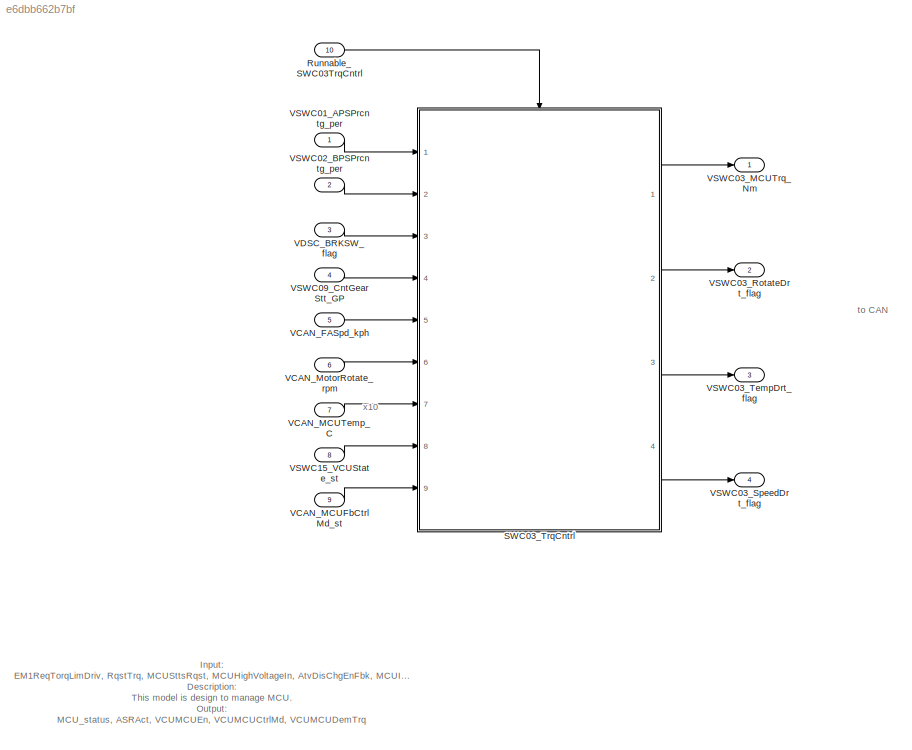
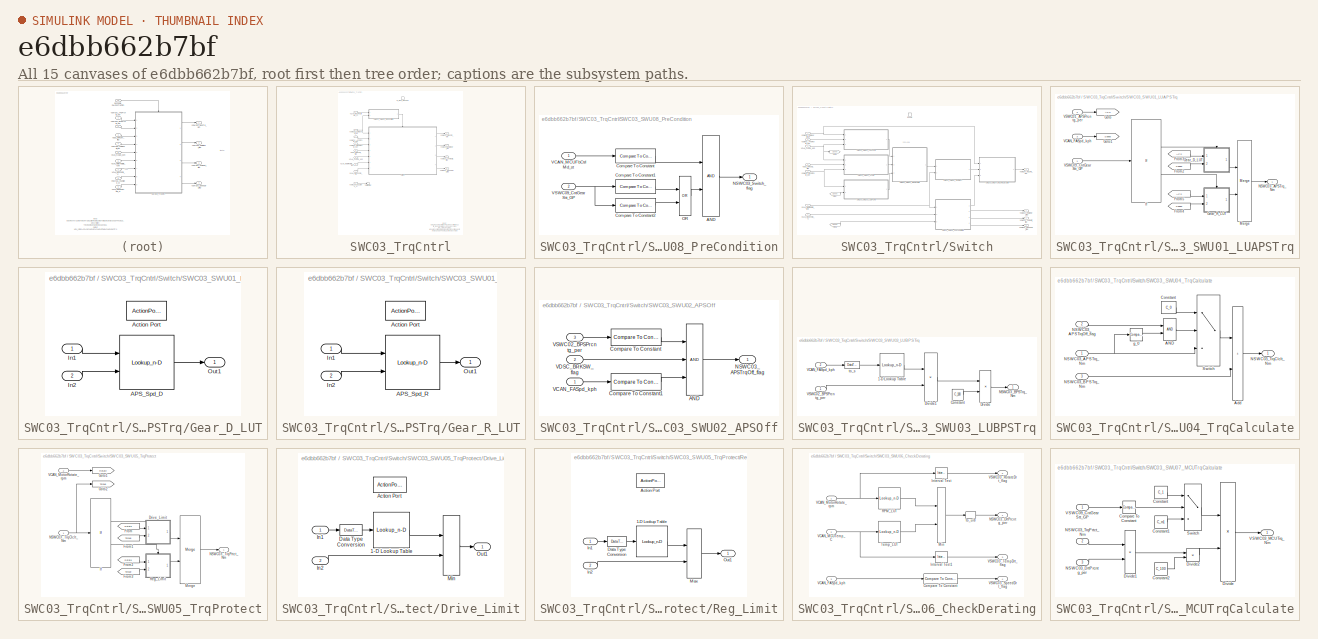
[diagram: thumbnail index - all 15 canvases of the model, root first then tree order]
MODEL slx_e6dbb662b7bf
KIND model
CONFIG AbsTol = auto
CONFIG EnableMultiTasking = off
CONFIG FixedStep = 0.01
CONFIG MaxStep = auto
CONFIG MinStep = auto
CONFIG RelTol = 1e-3
CONFIG SampleTimeConstraint = Unconstrained
CONFIG SolverName = FixedStepDiscrete
CONFIG StartTime = 0.0
CONFIG StopTime = 10.0
WORKSPACE source: mxarray member
WORKSPACE MSWC01_DrvLmt_Nm: Simulink.Parameter (value not decoded)
WORKSPACE MSWC01_FindBrk_Nm: Simulink.Parameter (value not decoded)
WORKSPACE MSWC01_FindTrq_Nm: Simulink.Parameter (value not decoded)
WORKSPACE MSWC01_RegLmt_Nm: Simulink.Parameter (value not decoded)
WORKSPACE NSWC05_ZeroTrq = 0
BLOCK [Inport] Runnable_SWC03TrqCntrl
  OutputFunctionCall = on
  Port = 10
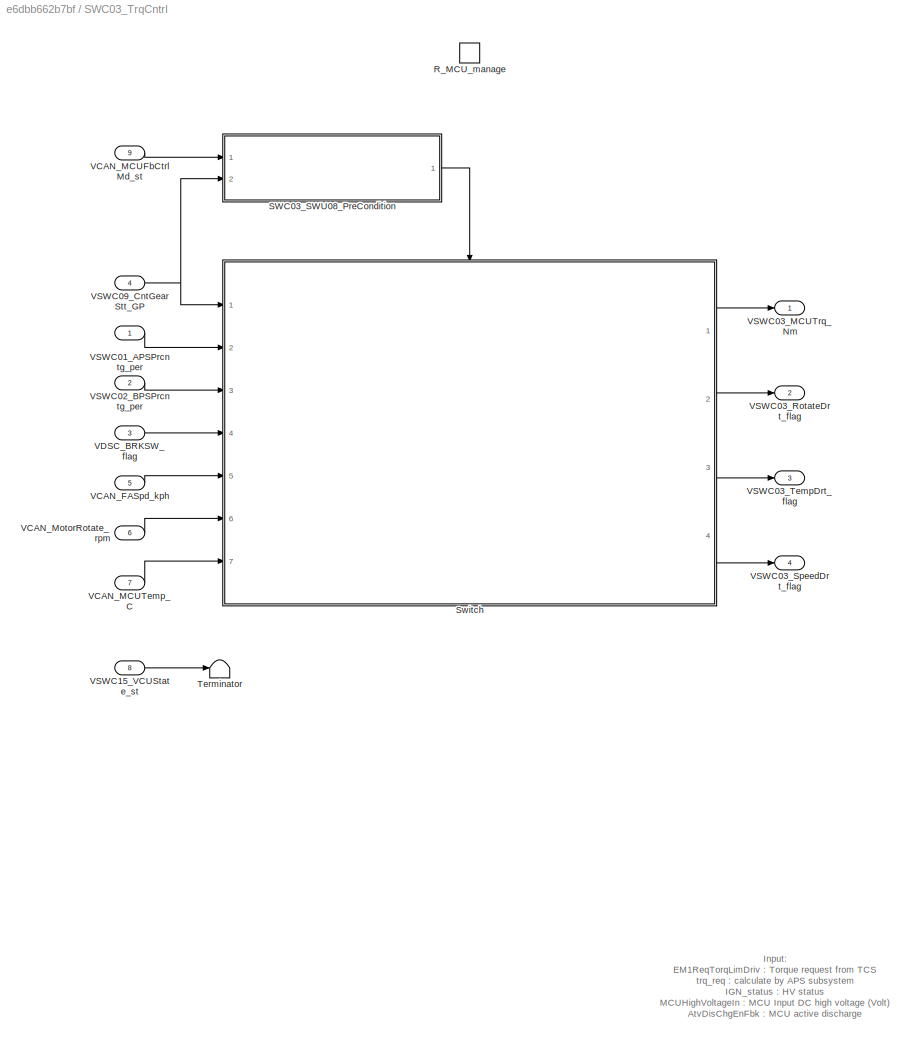
BLOCK [SubSystem] SWC03_TrqCntrl
  Ports = [9, 4, 0, 1]
  RequestExecContextInheritance = off
BLOCK [TriggerPort] SWC03_TrqCntrl/R_MCU_manage
  Ports = []
  StatesWhenEnabling = held
  TriggerType = function-call
  VariantControl = (inherit)
BLOCK [SubSystem] SWC03_TrqCntrl/SWC03_SWU08_PreCondition
  Ports = [2, 1]
  RTWFcnName = SWC03_SWU08_PreCondition
  RTWFcnNameOpts = User specified
  RTWSystemCode = Reusable function
  RequestExecContextInheritance = off
  TreatAsAtomicUnit = on
BLOCK [Logic] SWC03_TrqCntrl/SWC03_SWU08_PreCondition/AND
  AllPortsSameDT = off
  OutDataTypeStr = boolean
  Ports = [2, 1]
BLOCK [Reference] SWC03_TrqCntrl/SWC03_SWU08_PreCondition/Compare To Constant  REF=simulink/Logic and Bit
Operations/Compare
To Constant
  Ports = [1, 1]
  SourceBlock = simulink/Logic and Bit\nOperations/Compare\nTo Constant
  SourceProductBaseCode = SL
  SourceType = Compare To Constant
BLOCK [Reference] SWC03_TrqCntrl/SWC03_SWU08_PreCondition/Compare To Constant1  REF=simulink/Logic and Bit
Operations/Compare
To Constant
  Ports = [1, 1]
  SourceBlock = simulink/Logic and Bit\nOperations/Compare\nTo Constant
  SourceProductBaseCode = SL
  SourceType = Compare To Constant
BLOCK [Reference] SWC03_TrqCntrl/SWC03_SWU08_PreCondition/Compare To Constant2  REF=simulink/Logic and Bit
Operations/Compare
To Constant
  Ports = [1, 1]
  SourceBlock = simulink/Logic and Bit\nOperations/Compare\nTo Constant
  SourceProductBaseCode = SL
  SourceType = Compare To Constant
BLOCK [Outport] SWC03_TrqCntrl/SWC03_SWU08_PreCondition/NSWC03_Switch_flag
BLOCK [Logic] SWC03_TrqCntrl/SWC03_SWU08_PreCondition/OR
  AllPortsSameDT = off
  Operator = OR
  OutDataTypeStr = boolean
  Ports = [2, 1]
BLOCK [Inport] SWC03_TrqCntrl/SWC03_SWU08_PreCondition/VCAN_MCUFbCtrlMd_st
BLOCK [Inport] SWC03_TrqCntrl/SWC03_SWU08_PreCondition/VSWC09_CntGearStt_GP
  Port = 2
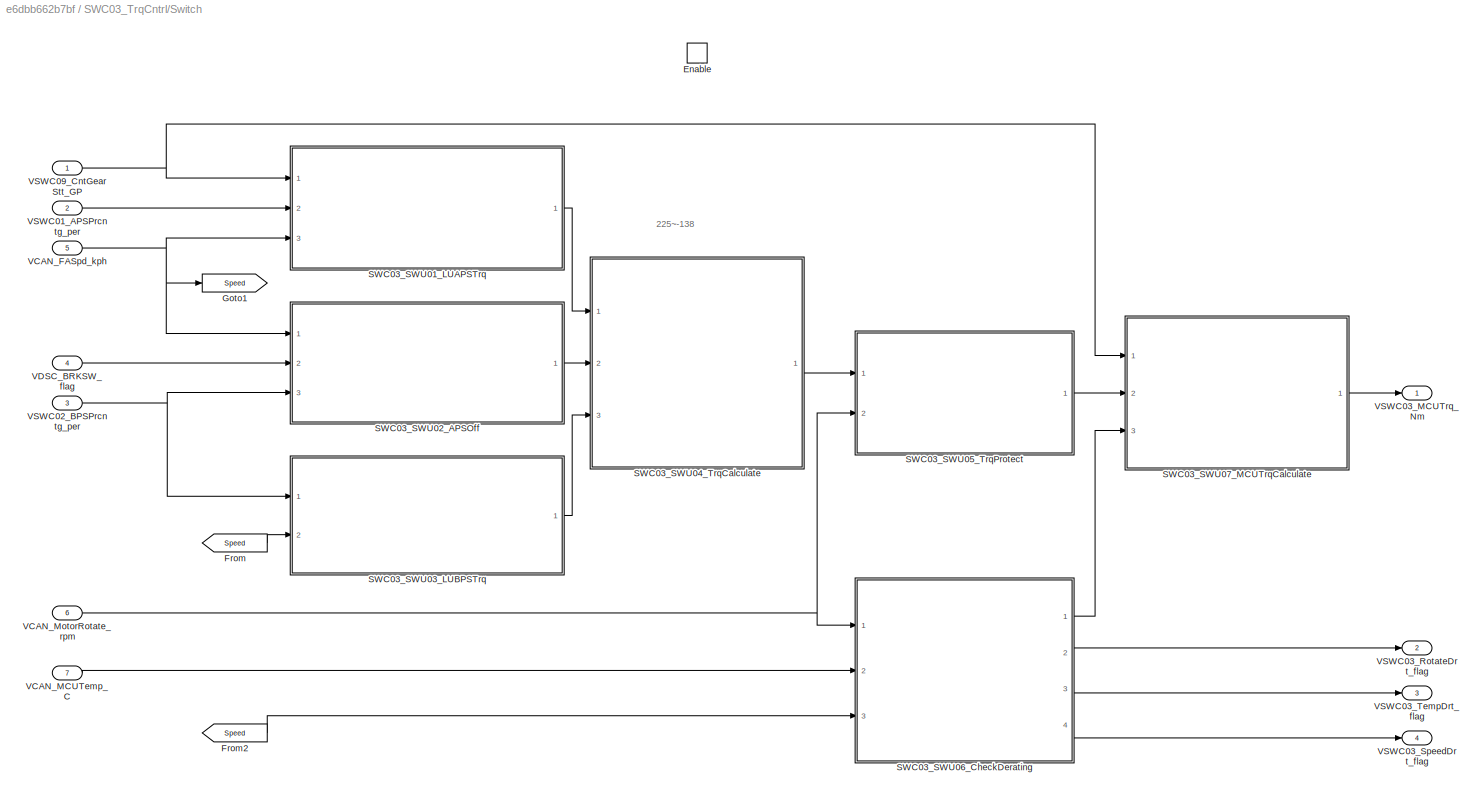
BLOCK [SubSystem] SWC03_TrqCntrl/Switch
  Ports = [7, 4, 1]
  RequestExecContextInheritance = off
BLOCK [EnablePort] SWC03_TrqCntrl/Switch/Enable
  Ports = []
  StatesWhenEnabling = reset
BLOCK [From] SWC03_TrqCntrl/Switch/From
  GotoTag = Speed
BLOCK [From] SWC03_TrqCntrl/Switch/From2
  GotoTag = Speed
BLOCK [Goto] SWC03_TrqCntrl/Switch/Goto1
  GotoTag = Speed
BLOCK [SubSystem] SWC03_TrqCntrl/Switch/SWC03_SWU01_LUAPSTrq
  Ports = [3, 1]
  RTWFcnName = SWC03_SWU01_LUAPSTrq
  RTWFcnNameOpts = User specified
  RTWSystemCode = Reusable function
  RequestExecContextInheritance = off
  TreatAsAtomicUnit = on
BLOCK [From] SWC03_TrqCntrl/Switch/SWC03_SWU01_LUAPSTrq/From2
  GotoTag = Speed
BLOCK [From] SWC03_TrqCntrl/Switch/SWC03_SWU01_LUAPSTrq/From3
  GotoTag = APS
BLOCK [From] SWC03_TrqCntrl/Switch/SWC03_SWU01_LUAPSTrq/From4
  GotoTag = Speed
BLOCK [From] SWC03_TrqCntrl/Switch/SWC03_SWU01_LUAPSTrq/From5
  GotoTag = APS
BLOCK [SubSystem] SWC03_TrqCntrl/Switch/SWC03_SWU01_LUAPSTrq/Gear_D_LUT
  Ports = [2, 1, 0, 0, 0, 0, 0, 1]
  RequestExecContextInheritance = off
  TreatAsAtomicUnit = on
BLOCK [Lookup_n-D] SWC03_TrqCntrl/Switch/SWC03_SWU01_LUAPSTrq/Gear_D_LUT/APS_Spd_D
  AttributesFormatString = UseLastTableValue=%<UseLastTableValue>
  BreakpointsForDimension1 = [0:10:100]
  BreakpointsForDimension1DataTypeStr = single
  BreakpointsForDimension2 = [0:10:150]
  BreakpointsForDimension2DataTypeStr = single
  ExtrapMethod = Clip
  InputPortMap = u0,u1
  IntermediateResultsDataTypeStr = single
  InternalRulePriority = Speed
  OutDataTypeStr = single
  Ports = [2, 1]
  Table = MSWC01_FindTrq_Nm
  TableDataTypeStr = single
  UseLastTableValue = on
BLOCK [ActionPort] SWC03_TrqCntrl/Switch/SWC03_SWU01_LUAPSTrq/Gear_D_LUT/Action Port
  ActionPortLabel = if(u1 == 4)
BLOCK [Inport] SWC03_TrqCntrl/Switch/SWC03_SWU01_LUAPSTrq/Gear_D_LUT/In1
BLOCK [Inport] SWC03_TrqCntrl/Switch/SWC03_SWU01_LUAPSTrq/Gear_D_LUT/In2
  Port = 2
BLOCK [Outport] SWC03_TrqCntrl/Switch/SWC03_SWU01_LUAPSTrq/Gear_D_LUT/Out1
BLOCK [SubSystem] SWC03_TrqCntrl/Switch/SWC03_SWU01_LUAPSTrq/Gear_R_LUT
  Ports = [2, 1, 0, 0, 0, 0, 0, 1]
  RequestExecContextInheritance = off
  TreatAsAtomicUnit = on
BLOCK [Lookup_n-D] SWC03_TrqCntrl/Switch/SWC03_SWU01_LUAPSTrq/Gear_R_LUT/APS_Spd_R
  AttributesFormatString = UseLastTableValue=%<UseLastTableValue>
  BreakpointsForDimension1 = [0:10:100]
  BreakpointsForDimension1DataTypeStr = single
  BreakpointsForDimension2 = [0:10:150]
  BreakpointsForDimension2DataTypeStr = single
  ExtrapMethod = Clip
  InputPortMap = u0,u1
  IntermediateResultsDataTypeStr = single
  InternalRulePriority = Speed
  OutDataTypeStr = single
  Ports = [2, 1]
  Table = MSWC01_FindTrq_Nm
  TableDataTypeStr = single
  UseLastTableValue = on
BLOCK [ActionPort] SWC03_TrqCntrl/Switch/SWC03_SWU01_LUAPSTrq/Gear_R_LUT/Action Port
  ActionPortLabel = elseif(u1 == 2)
BLOCK [Inport] SWC03_TrqCntrl/Switch/SWC03_SWU01_LUAPSTrq/Gear_R_LUT/In1
BLOCK [Inport] SWC03_TrqCntrl/Switch/SWC03_SWU01_LUAPSTrq/Gear_R_LUT/In2
  Port = 2
BLOCK [Outport] SWC03_TrqCntrl/Switch/SWC03_SWU01_LUAPSTrq/Gear_R_LUT/Out1
BLOCK [Goto] SWC03_TrqCntrl/Switch/SWC03_SWU01_LUAPSTrq/Goto
  GotoTag = APS
BLOCK [Goto] SWC03_TrqCntrl/Switch/SWC03_SWU01_LUAPSTrq/Goto1
  GotoTag = Speed
BLOCK [If] SWC03_TrqCntrl/Switch/SWC03_SWU01_LUAPSTrq/If
  ElseIfExpressions = u1 == 2
  IfExpression = u1 == 4
  Ports = [1, 2]
  ShowElse = off
BLOCK [Merge] SWC03_TrqCntrl/Switch/SWC03_SWU01_LUAPSTrq/Merge
  Ports = [2, 1]
BLOCK [Outport] SWC03_TrqCntrl/Switch/SWC03_SWU01_LUAPSTrq/NSWC03_APSTrq_Nm
BLOCK [Inport] SWC03_TrqCntrl/Switch/SWC03_SWU01_LUAPSTrq/VCAN_FASpd_kph
  Port = 3
BLOCK [Inport] SWC03_TrqCntrl/Switch/SWC03_SWU01_LUAPSTrq/VSWC01_APSPrcntg_per
  Port = 2
BLOCK [Inport] SWC03_TrqCntrl/Switch/SWC03_SWU01_LUAPSTrq/VSWC09_CntGearStt_GP
BLOCK [SubSystem] SWC03_TrqCntrl/Switch/SWC03_SWU02_APSOff
  Ports = [3, 1]
  RTWFcnName = SWC03_SWU02_APSOff
  RTWFcnNameOpts = User specified
  RTWSystemCode = Reusable function
  RequestExecContextInheritance = off
  TreatAsAtomicUnit = on
BLOCK [Logic] SWC03_TrqCntrl/Switch/SWC03_SWU02_APSOff/AND
  AllPortsSameDT = off
  Inputs = 3
  OutDataTypeStr = boolean
  Ports = [3, 1]
BLOCK [Reference] SWC03_TrqCntrl/Switch/SWC03_SWU02_APSOff/Compare To Constant  REF=simulink/Logic and Bit
Operations/Compare
To Constant
  Ports = [1, 1]
  SourceBlock = simulink/Logic and Bit\nOperations/Compare\nTo Constant
  SourceProductBaseCode = SL
  SourceType = Compare To Constant
BLOCK [Reference] SWC03_TrqCntrl/Switch/SWC03_SWU02_APSOff/Compare To Constant1  REF=simulink/Logic and Bit
Operations/Compare
To Constant
  Ports = [1, 1]
  SourceBlock = simulink/Logic and Bit\nOperations/Compare\nTo Constant
  SourceProductBaseCode = SL
  SourceType = Compare To Constant
BLOCK [Outport] SWC03_TrqCntrl/Switch/SWC03_SWU02_APSOff/NSWC03_APSTrqOff_flag
BLOCK [Inport] SWC03_TrqCntrl/Switch/SWC03_SWU02_APSOff/VCAN_FASpd_kph
BLOCK [Inport] SWC03_TrqCntrl/Switch/SWC03_SWU02_APSOff/VDSC_BRKSW_flag
  Port = 2
BLOCK [Inport] SWC03_TrqCntrl/Switch/SWC03_SWU02_APSOff/VSWC02_BPSPrcntg_per
  Port = 3
BLOCK [SubSystem] SWC03_TrqCntrl/Switch/SWC03_SWU03_LUBPSTrq
  Ports = [2, 1]
  RTWFcnName = SWC03_SWU03_LUBPSTrq
  RTWFcnNameOpts = User specified
  RTWSystemCode = Reusable function
  RequestExecContextInheritance = off
  TreatAsAtomicUnit = on
BLOCK [Lookup_n-D] SWC03_TrqCntrl/Switch/SWC03_SWU03_LUBPSTrq/1-D Lookup Table
  BreakpointsForDimension1 = [0:10:150]
  BreakpointsForDimension1DataTypeStr = single
  FractionDataTypeStr = single
  InputPortMap = u0
  IntermediateResultsDataTypeStr = single
  InternalRulePriority = Speed
  NumberOfTableDimensions = 1
  OutDataTypeStr = single
  Ports = [1, 1]
  RndMeth = Simplest
  Table = MSWC01_FindBrk_Nm
  TableDataTypeStr = single
BLOCK [Constant] SWC03_TrqCntrl/Switch/SWC03_SWU03_LUBPSTrq/Constant
  OutDataTypeStr = single
  SampleTime = -1
  Value = C_100
BLOCK [Product] SWC03_TrqCntrl/Switch/SWC03_SWU03_LUBPSTrq/Divide
  Inputs = */
  Ports = [2, 1]
BLOCK [Product] SWC03_TrqCntrl/Switch/SWC03_SWU03_LUBPSTrq/Divide1
  Inputs = **
  Ports = [2, 1]
BLOCK [Outport] SWC03_TrqCntrl/Switch/SWC03_SWU03_LUBPSTrq/NSWC03_BPSTrq_Nm
BLOCK [Inport] SWC03_TrqCntrl/Switch/SWC03_SWU03_LUBPSTrq/VCAN_FASpd_kph
  Port = 2
BLOCK [Inport] SWC03_TrqCntrl/Switch/SWC03_SWU03_LUBPSTrq/VSWC02_BPSPrcntg_per
BLOCK [DataTypeConversion] SWC03_TrqCntrl/Switch/SWC03_SWU03_LUBPSTrq/to_s
  OutDataTypeStr = single
  RndMeth = Floor
  SaturateOnIntegerOverflow = off
BLOCK [SubSystem] SWC03_TrqCntrl/Switch/SWC03_SWU04_TrqCalculate
  Ports = [3, 1]
  RTWFcnName = SWC03_SWU04_TrqCalculate
  RTWFcnNameOpts = User specified
  RTWSystemCode = Reusable function
  RequestExecContextInheritance = off
  TreatAsAtomicUnit = on
BLOCK [Logic] SWC03_TrqCntrl/Switch/SWC03_SWU04_TrqCalculate/AND
  AllPortsSameDT = off
  OutDataTypeStr = boolean
  Ports = [2, 1]
BLOCK [Sum] SWC03_TrqCntrl/Switch/SWC03_SWU04_TrqCalculate/Add
  IconShape = rectangular
  Ports = [2, 1]
BLOCK [Constant] SWC03_TrqCntrl/Switch/SWC03_SWU04_TrqCalculate/Constant
  OutDataTypeStr = single
  SampleTime = -1
  Value = C_0
BLOCK [Inport] SWC03_TrqCntrl/Switch/SWC03_SWU04_TrqCalculate/NSWC03_APSTrqOff_flag
  Port = 2
BLOCK [Inport] SWC03_TrqCntrl/Switch/SWC03_SWU04_TrqCalculate/NSWC03_APSTrq_Nm
BLOCK [Inport] SWC03_TrqCntrl/Switch/SWC03_SWU04_TrqCalculate/NSWC03_BPSTrq_Nm
  Port = 3
BLOCK [Outport] SWC03_TrqCntrl/Switch/SWC03_SWU04_TrqCalculate/NSWC03_TrqClclt_Nm
BLOCK [Switch] SWC03_TrqCntrl/Switch/SWC03_SWU04_TrqCalculate/Switch
  Criteria = u2 ~= 0
  InputSameDT = off
  SaturateOnIntegerOverflow = off
BLOCK [Reference] SWC03_TrqCntrl/Switch/SWC03_SWU04_TrqCalculate/g_0  REF=simulink/Logic and Bit
Operations/Compare
To Constant
  Ports = [1, 1]
  SourceBlock = simulink/Logic and Bit\nOperations/Compare\nTo Constant
  SourceProductBaseCode = SL
  SourceType = Compare To Constant
BLOCK [SubSystem] SWC03_TrqCntrl/Switch/SWC03_SWU05_TrqProtect
  Ports = [2, 1]
  RTWFcnName = SWC03_SWU06_TrqProtect
  RTWFcnNameOpts = User specified
  RTWSystemCode = Reusable function
  RequestExecContextInheritance = off
  TreatAsAtomicUnit = on
BLOCK [SubSystem] SWC03_TrqCntrl/Switch/SWC03_SWU05_TrqProtect/Drive_Limit
  Ports = [2, 1, 0, 0, 0, 0, 0, 1]
  RequestExecContextInheritance = off
  TreatAsAtomicUnit = on
BLOCK [Lookup_n-D] SWC03_TrqCntrl/Switch/SWC03_SWU05_TrqProtect/Drive_Limit/1-D Lookup Table
  BreakpointsForDimension1 = [0:1000:16000]
  BreakpointsForDimension1DataTypeStr = single
  FractionDataTypeStr = single
  InputPortMap = u0
  IntermediateResultsDataTypeStr = single
  InternalRulePriority = Speed
  NumberOfTableDimensions = 1
  OutDataTypeStr = single
  Ports = [1, 1]
  RndMeth = Simplest
  Table = MSWC01_DrvLmt_Nm
  TableDataTypeStr = single
BLOCK [ActionPort] SWC03_TrqCntrl/Switch/SWC03_SWU05_TrqProtect/Drive_Limit/Action Port
  ActionPortLabel = if(u1 > 0)
BLOCK [DataTypeConversion] SWC03_TrqCntrl/Switch/SWC03_SWU05_TrqProtect/Drive_Limit/Data Type Conversion
  OutDataTypeStr = single
  RndMeth = Floor
  SaturateOnIntegerOverflow = off
BLOCK [Inport] SWC03_TrqCntrl/Switch/SWC03_SWU05_TrqProtect/Drive_Limit/In1
BLOCK [Inport] SWC03_TrqCntrl/Switch/SWC03_SWU05_TrqProtect/Drive_Limit/In2
  Port = 2
BLOCK [MinMax] SWC03_TrqCntrl/Switch/SWC03_SWU05_TrqProtect/Drive_Limit/Min
  Inputs = 2
  Ports = [2, 1]
BLOCK [Outport] SWC03_TrqCntrl/Switch/SWC03_SWU05_TrqProtect/Drive_Limit/Out1
BLOCK [From] SWC03_TrqCntrl/Switch/SWC03_SWU05_TrqProtect/From
  GotoTag = Rotate
BLOCK [From] SWC03_TrqCntrl/Switch/SWC03_SWU05_TrqProtect/From1
  GotoTag = Torque
BLOCK [From] SWC03_TrqCntrl/Switch/SWC03_SWU05_TrqProtect/From2
  GotoTag = Rotate
BLOCK [From] SWC03_TrqCntrl/Switch/SWC03_SWU05_TrqProtect/From3
  GotoTag = Torque
BLOCK [Goto] SWC03_TrqCntrl/Switch/SWC03_SWU05_TrqProtect/Goto1
  GotoTag = Rotate
BLOCK [Goto] SWC03_TrqCntrl/Switch/SWC03_SWU05_TrqProtect/Goto2
  GotoTag = Torque
BLOCK [If] SWC03_TrqCntrl/Switch/SWC03_SWU05_TrqProtect/If
  Ports = [1, 2]
BLOCK [Merge] SWC03_TrqCntrl/Switch/SWC03_SWU05_TrqProtect/Merge
  Ports = [2, 1]
BLOCK [Inport] SWC03_TrqCntrl/Switch/SWC03_SWU05_TrqProtect/NSWC03_TrqClclt_Nm
BLOCK [Outport] SWC03_TrqCntrl/Switch/SWC03_SWU05_TrqProtect/NSWC03_TrqPrtct_Nm
BLOCK [SubSystem] SWC03_TrqCntrl/Switch/SWC03_SWU05_TrqProtect/Reg_Limit
  Ports = [2, 1, 0, 0, 0, 0, 0, 1]
  RequestExecContextInheritance = off
  TreatAsAtomicUnit = on
BLOCK [Lookup_n-D] SWC03_TrqCntrl/Switch/SWC03_SWU05_TrqProtect/Reg_Limit/1-D Lookup Table
  BreakpointsForDimension1 = [0:1000:16000]
  BreakpointsForDimension1DataTypeStr = single
  FractionDataTypeStr = single
  InputPortMap = u0
  IntermediateResultsDataTypeStr = single
  InternalRulePriority = Speed
  NumberOfTableDimensions = 1
  OutDataTypeStr = single
  Ports = [1, 1]
  RndMeth = Simplest
  Table = MSWC01_RegLmt_Nm
  TableDataTypeStr = single
BLOCK [ActionPort] SWC03_TrqCntrl/Switch/SWC03_SWU05_TrqProtect/Reg_Limit/Action Port
  ActionPortLabel = else
BLOCK [DataTypeConversion] SWC03_TrqCntrl/Switch/SWC03_SWU05_TrqProtect/Reg_Limit/Data Type Conversion
  OutDataTypeStr = single
  RndMeth = Floor
  SaturateOnIntegerOverflow = off
BLOCK [Inport] SWC03_TrqCntrl/Switch/SWC03_SWU05_TrqProtect/Reg_Limit/In1
BLOCK [Inport] SWC03_TrqCntrl/Switch/SWC03_SWU05_TrqProtect/Reg_Limit/In2
  Port = 2
BLOCK [MinMax] SWC03_TrqCntrl/Switch/SWC03_SWU05_TrqProtect/Reg_Limit/Max
  Function = max
  Inputs = 2
  Ports = [2, 1]
BLOCK [Outport] SWC03_TrqCntrl/Switch/SWC03_SWU05_TrqProtect/Reg_Limit/Out1
BLOCK [Inport] SWC03_TrqCntrl/Switch/SWC03_SWU05_TrqProtect/VCAN_MotorRotate_rpm
  Port = 2
BLOCK [SubSystem] SWC03_TrqCntrl/Switch/SWC03_SWU06_CheckDerating
  Ports = [3, 4]
  RTWFcnName = SWC03_SWU05_CheckDerating
  RTWFcnNameOpts = User specified
  RTWSystemCode = Reusable function
  RequestExecContextInheritance = off
  TreatAsAtomicUnit = on
BLOCK [Reference] SWC03_TrqCntrl/Switch/SWC03_SWU06_CheckDerating/Compare To Constant  REF=simulink/Logic and Bit
Operations/Compare
To Constant
  Ports = [1, 1]
  SourceBlock = simulink/Logic and Bit\nOperations/Compare\nTo Constant
  SourceProductBaseCode = SL
  SourceType = Compare To Constant
BLOCK [Reference] SWC03_TrqCntrl/Switch/SWC03_SWU06_CheckDerating/Interval Test  REF=simulink/Logic and Bit
Operations/Interval Test
  AttributesFormatString = %<uplimit>~%<lowlimit>
  Ports = [1, 1]
  SourceBlock = simulink/Logic and Bit\nOperations/Interval Test
  SourceProductBaseCode = SL
  SourceType = Interval Test
BLOCK [Reference] SWC03_TrqCntrl/Switch/SWC03_SWU06_CheckDerating/Interval Test1  REF=simulink/Logic and Bit
Operations/Interval Test
  AttributesFormatString = %<uplimit>~%<lowlimit>
  Ports = [1, 1]
  SourceBlock = simulink/Logic and Bit\nOperations/Interval Test
  SourceProductBaseCode = SL
  SourceType = Interval Test
BLOCK [MinMax] SWC03_TrqCntrl/Switch/SWC03_SWU06_CheckDerating/Min
  Inputs = 2
  Ports = [2, 1]
BLOCK [Outport] SWC03_TrqCntrl/Switch/SWC03_SWU06_CheckDerating/NSWC03_DrtPrcntg_per
BLOCK [Lookup_n-D] SWC03_TrqCntrl/Switch/SWC03_SWU06_CheckDerating/RPM_LUT
  BreakpointsForDimension1 = [15000:10:16000]
  BreakpointsForDimension1DataTypeStr = uint16
  ExtrapMethod = Clip
  FractionDataTypeStr = single
  InputPortMap = u0
  IntermediateResultsDataTypeStr = single
  InternalRulePriority = Speed
  InterpMethod = Flat
  NumberOfTableDimensions = 1
  OutDataTypeStr = uint16
  Ports = [1, 1]
  RndMeth = Simplest
  Table = 100 - [0:100]
  TableDataTypeStr = uint16
  UseLastTableValue = on
BLOCK [Lookup_n-D] SWC03_TrqCntrl/Switch/SWC03_SWU06_CheckDerating/Temp_LUT
  BreakpointsForDimension1 = [1250:1350]
  BreakpointsForDimension1DataTypeStr = uint16
  ExtrapMethod = Clip
  FractionDataTypeStr = single
  InputPortMap = u0
  IntermediateResultsDataTypeStr = single
  InternalRulePriority = Speed
  InterpMethod = Flat
  NumberOfTableDimensions = 1
  OutDataTypeStr = uint16
  Ports = [1, 1]
  RndMeth = Simplest
  Table = 100 - [0:100]
  TableDataTypeStr = uint16
  UseLastTableValue = on
BLOCK [Inport] SWC03_TrqCntrl/Switch/SWC03_SWU06_CheckDerating/VCAN_FASpd_kph
  Port = 3
BLOCK [Inport] SWC03_TrqCntrl/Switch/SWC03_SWU06_CheckDerating/VCAN_MCUTemp_C
  Port = 2
BLOCK [Inport] SWC03_TrqCntrl/Switch/SWC03_SWU06_CheckDerating/VCAN_MotorRotate_rpm
BLOCK [Outport] SWC03_TrqCntrl/Switch/SWC03_SWU06_CheckDerating/VSWC03_RotateDrt_flag
  Port = 2
BLOCK [Outport] SWC03_TrqCntrl/Switch/SWC03_SWU06_CheckDerating/VSWC03_SpeedDrt_flag
  Port = 4
BLOCK [Outport] SWC03_TrqCntrl/Switch/SWC03_SWU06_CheckDerating/VSWC03_TempDrt_flag
  Port = 3
BLOCK [DataTypeConversion] SWC03_TrqCntrl/Switch/SWC03_SWU06_CheckDerating/to_ui8
  OutDataTypeStr = uint8
  RndMeth = Floor
  SaturateOnIntegerOverflow = off
BLOCK [SubSystem] SWC03_TrqCntrl/Switch/SWC03_SWU07_MCUTrqCalculate
  Ports = [3, 1]
  RTWFcnName = SWC03_SWU07_MCUTrqCalculate
  RTWFcnNameOpts = User specified
  RTWSystemCode = Reusable function
  RequestExecContextInheritance = off
  TreatAsAtomicUnit = on
BLOCK [Reference] SWC03_TrqCntrl/Switch/SWC03_SWU07_MCUTrqCalculate/Compare To Constant  REF=simulink/Logic and Bit
Operations/Compare
To Constant
  Ports = [1, 1]
  SourceBlock = simulink/Logic and Bit\nOperations/Compare\nTo Constant
  SourceProductBaseCode = SL
  SourceType = Compare To Constant
BLOCK [Constant] SWC03_TrqCntrl/Switch/SWC03_SWU07_MCUTrqCalculate/Constant
  OutDataTypeStr = int8
  SampleTime = -1
  Value = C_1
BLOCK [Constant] SWC03_TrqCntrl/Switch/SWC03_SWU07_MCUTrqCalculate/Constant1
  OutDataTypeStr = int8
  SampleTime = -1
  Value = C_m1
BLOCK [Constant] SWC03_TrqCntrl/Switch/SWC03_SWU07_MCUTrqCalculate/Constant2
  OutDataTypeStr = uint8
  Value = C_100
BLOCK [Product] SWC03_TrqCntrl/Switch/SWC03_SWU07_MCUTrqCalculate/Divide
  Inputs = **
  Ports = [2, 1]
BLOCK [Product] SWC03_TrqCntrl/Switch/SWC03_SWU07_MCUTrqCalculate/Divide1
  Inputs = **
  Ports = [2, 1]
BLOCK [Product] SWC03_TrqCntrl/Switch/SWC03_SWU07_MCUTrqCalculate/Divide2
  Inputs = */
  Ports = [2, 1]
BLOCK [Inport] SWC03_TrqCntrl/Switch/SWC03_SWU07_MCUTrqCalculate/NSWC03_DrtPrcntg_per
  Port = 3
BLOCK [Inport] SWC03_TrqCntrl/Switch/SWC03_SWU07_MCUTrqCalculate/NSWC03_TrqPrtct_Nm
  Port = 2
BLOCK [Switch] SWC03_TrqCntrl/Switch/SWC03_SWU07_MCUTrqCalculate/Switch
  Criteria = u2 > Threshold
  InputSameDT = off
  SaturateOnIntegerOverflow = off
BLOCK [Outport] SWC03_TrqCntrl/Switch/SWC03_SWU07_MCUTrqCalculate/VSWC03_MCUTrq_Nm
BLOCK [Inport] SWC03_TrqCntrl/Switch/SWC03_SWU07_MCUTrqCalculate/VSWC09_CntGearStt_GP
BLOCK [Inport] SWC03_TrqCntrl/Switch/VCAN_FASpd_kph
  Port = 5
BLOCK [Inport] SWC03_TrqCntrl/Switch/VCAN_MCUTemp_C
  Port = 7
BLOCK [Inport] SWC03_TrqCntrl/Switch/VCAN_MotorRotate_rpm
  Port = 6
BLOCK [Inport] SWC03_TrqCntrl/Switch/VDSC_BRKSW_flag
  Port = 4
BLOCK [Inport] SWC03_TrqCntrl/Switch/VSWC01_APSPrcntg_per
  Port = 2
BLOCK [Inport] SWC03_TrqCntrl/Switch/VSWC02_BPSPrcntg_per
  Port = 3
BLOCK [Outport] SWC03_TrqCntrl/Switch/VSWC03_MCUTrq_Nm
  InitialOutput = 0
  OutputWhenDisabled = reset
BLOCK [Outport] SWC03_TrqCntrl/Switch/VSWC03_RotateDrt_flag
  InitialOutput = false
  OutputWhenDisabled = reset
  Port = 2
BLOCK [Outport] SWC03_TrqCntrl/Switch/VSWC03_SpeedDrt_flag
  InitialOutput = false
  OutputWhenDisabled = reset
  Port = 4
BLOCK [Outport] SWC03_TrqCntrl/Switch/VSWC03_TempDrt_flag
  InitialOutput = false
  OutputWhenDisabled = reset
  Port = 3
BLOCK [Inport] SWC03_TrqCntrl/Switch/VSWC09_CntGearStt_GP
BLOCK [Terminator] SWC03_TrqCntrl/Terminator
BLOCK [Inport] SWC03_TrqCntrl/VCAN_FASpd_kph
  Port = 5
BLOCK [Inport] SWC03_TrqCntrl/VCAN_MCUFbCtrlMd_st
  Port = 9
BLOCK [Inport] SWC03_TrqCntrl/VCAN_MCUTemp_C
  Port = 7
BLOCK [Inport] SWC03_TrqCntrl/VCAN_MotorRotate_rpm
  Port = 6
BLOCK [Inport] SWC03_TrqCntrl/VDSC_BRKSW_flag
  Port = 3
BLOCK [Inport] SWC03_TrqCntrl/VSWC01_APSPrcntg_per
BLOCK [Inport] SWC03_TrqCntrl/VSWC02_BPSPrcntg_per
  Port = 2
BLOCK [Outport] SWC03_TrqCntrl/VSWC03_MCUTrq_Nm
BLOCK [Outport] SWC03_TrqCntrl/VSWC03_RotateDrt_flag
  Port = 2
BLOCK [Outport] SWC03_TrqCntrl/VSWC03_SpeedDrt_flag
  Port = 4
BLOCK [Outport] SWC03_TrqCntrl/VSWC03_TempDrt_flag
  Port = 3
BLOCK [Inport] SWC03_TrqCntrl/VSWC09_CntGearStt_GP
  Port = 4
BLOCK [Inport] SWC03_TrqCntrl/VSWC15_VCUState_st
  Port = 8
BLOCK [Inport] VCAN_FASpd_kph
  OutDataTypeStr = uint8
  OutMax = 150
  OutMin = 0
  Port = 5
  PortDimensions = 1
  Unit = km/hr
BLOCK [Inport] VCAN_MCUFbCtrlMd_st
  OutDataTypeStr = uint8
  OutMax = 4
  OutMin = 0
  Port = 9
  PortDimensions = 1
BLOCK [Inport] VCAN_MCUTemp_C
  OutDataTypeStr = uint16
  Port = 7
BLOCK [Inport] VCAN_MotorRotate_rpm
  OutDataTypeStr = uint16
  Port = 6
BLOCK [Inport] VDSC_BRKSW_flag
  OutDataTypeStr = boolean
  OutMax = 1
  OutMin = 0
  Port = 3
  PortDimensions = 1
BLOCK [Inport] VSWC01_APSPrcntg_per
  OutDataTypeStr = uint8
  OutMax = 100
  OutMin = 0
  PortDimensions = 1
  Unit = %
BLOCK [Inport] VSWC02_BPSPrcntg_per
  OutDataTypeStr = uint8
  OutMax = 100
  OutMin = 0
  Port = 2
  PortDimensions = 1
  Unit = %
BLOCK [Outport] VSWC03_MCUTrq_Nm
BLOCK [Outport] VSWC03_RotateDrt_flag
  Port = 2
BLOCK [Outport] VSWC03_SpeedDrt_flag
  Port = 4
BLOCK [Outport] VSWC03_TempDrt_flag
  Port = 3
BLOCK [Inport] VSWC09_CntGearStt_GP
  OutDataTypeStr = uint8
  OutMax = 4
  OutMin = 0
  Port = 4
BLOCK [Inport] VSWC15_VCUState_st
  OutDataTypeStr = uint8
  Port = 8
ANNOTATION (root): Input: EM1ReqTorqLimDriv, RqstTrq, MCUSttsRqst, MCUHighVoltageIn , AtvDisChgEnFbk, MCUIGBTEnFbk Description: This model is design to manage MCU. Output: MCU_status, ASRAct, VCUMCUEn, VCUMCUCtrlMd, VCUMCUDemTrq
ANNOTATION (root): to CAN
ANNOTATION (root): x10
ANNOTATION SWC03_TrqCntrl: Input: EM1ReqTorqLimDriv : Torque request from TCS trq_req : calculate by APS subsystem IGN_status : HV status MCUHighVoltageIn : MCU Input DC high voltage (Volt) AtvDisChgEnFbk : MCU active discharge MCUIGBTEnFbk : Inverter IGBT state Description: There are functions such as deciding torque request source (traction control system or APS subsystem), or turning on/off HV of MCU. Output: MCU_status ...<+165ch>
ANNOTATION SWC03_TrqCntrl/Switch: 225~-138
LINE Runnable_SWC03TrqCntrl:1 -> SWC03_TrqCntrl:trigger
LINE SWC03_TrqCntrl/SWC03_SWU08_PreCondition/AND:1 -> SWC03_TrqCntrl/SWC03_SWU08_PreCondition/NSWC03_Switch_flag:1
LINE SWC03_TrqCntrl/SWC03_SWU08_PreCondition/Compare To Constant1:1 -> SWC03_TrqCntrl/SWC03_SWU08_PreCondition/OR:1
LINE SWC03_TrqCntrl/SWC03_SWU08_PreCondition/Compare To Constant2:1 -> SWC03_TrqCntrl/SWC03_SWU08_PreCondition/OR:2
LINE SWC03_TrqCntrl/SWC03_SWU08_PreCondition/Compare To Constant:1 -> SWC03_TrqCntrl/SWC03_SWU08_PreCondition/AND:1
LINE SWC03_TrqCntrl/SWC03_SWU08_PreCondition/OR:1 -> SWC03_TrqCntrl/SWC03_SWU08_PreCondition/AND:2
LINE SWC03_TrqCntrl/SWC03_SWU08_PreCondition/VCAN_MCUFbCtrlMd_st:1 -> SWC03_TrqCntrl/SWC03_SWU08_PreCondition/Compare To Constant:1
NET SWC03_TrqCntrl/SWC03_SWU08_PreCondition/VSWC09_CntGearStt_GP:1 -> SWC03_TrqCntrl/SWC03_SWU08_PreCondition/Compare To Constant1:1, SWC03_TrqCntrl/SWC03_SWU08_PreCondition/Compare To Constant2:1
LINE SWC03_TrqCntrl/SWC03_SWU08_PreCondition:1 -> SWC03_TrqCntrl/Switch:enable
LINE SWC03_TrqCntrl/Switch/From2:1 -> SWC03_TrqCntrl/Switch/SWC03_SWU06_CheckDerating:3
LINE SWC03_TrqCntrl/Switch/From:1 -> SWC03_TrqCntrl/Switch/SWC03_SWU03_LUBPSTrq:2
LINE SWC03_TrqCntrl/Switch/SWC03_SWU01_LUAPSTrq/From2:1 -> SWC03_TrqCntrl/Switch/SWC03_SWU01_LUAPSTrq/Gear_D_LUT:2
LINE SWC03_TrqCntrl/Switch/SWC03_SWU01_LUAPSTrq/From3:1 -> SWC03_TrqCntrl/Switch/SWC03_SWU01_LUAPSTrq/Gear_D_LUT:1
LINE SWC03_TrqCntrl/Switch/SWC03_SWU01_LUAPSTrq/From4:1 -> SWC03_TrqCntrl/Switch/SWC03_SWU01_LUAPSTrq/Gear_R_LUT:2
LINE SWC03_TrqCntrl/Switch/SWC03_SWU01_LUAPSTrq/From5:1 -> SWC03_TrqCntrl/Switch/SWC03_SWU01_LUAPSTrq/Gear_R_LUT:1
LINE SWC03_TrqCntrl/Switch/SWC03_SWU01_LUAPSTrq/Gear_D_LUT/APS_Spd_D:1 -> SWC03_TrqCntrl/Switch/SWC03_SWU01_LUAPSTrq/Gear_D_LUT/Out1:1
LINE SWC03_TrqCntrl/Switch/SWC03_SWU01_LUAPSTrq/Gear_D_LUT/In1:1 -> SWC03_TrqCntrl/Switch/SWC03_SWU01_LUAPSTrq/Gear_D_LUT/APS_Spd_D:1
LINE SWC03_TrqCntrl/Switch/SWC03_SWU01_LUAPSTrq/Gear_D_LUT/In2:1 -> SWC03_TrqCntrl/Switch/SWC03_SWU01_LUAPSTrq/Gear_D_LUT/APS_Spd_D:2
LINE SWC03_TrqCntrl/Switch/SWC03_SWU01_LUAPSTrq/Gear_D_LUT:1 -> SWC03_TrqCntrl/Switch/SWC03_SWU01_LUAPSTrq/Merge:1
LINE SWC03_TrqCntrl/Switch/SWC03_SWU01_LUAPSTrq/Gear_R_LUT/APS_Spd_R:1 -> SWC03_TrqCntrl/Switch/SWC03_SWU01_LUAPSTrq/Gear_R_LUT/Out1:1
LINE SWC03_TrqCntrl/Switch/SWC03_SWU01_LUAPSTrq/Gear_R_LUT/In1:1 -> SWC03_TrqCntrl/Switch/SWC03_SWU01_LUAPSTrq/Gear_R_LUT/APS_Spd_R:1
LINE SWC03_TrqCntrl/Switch/SWC03_SWU01_LUAPSTrq/Gear_R_LUT/In2:1 -> SWC03_TrqCntrl/Switch/SWC03_SWU01_LUAPSTrq/Gear_R_LUT/APS_Spd_R:2
LINE SWC03_TrqCntrl/Switch/SWC03_SWU01_LUAPSTrq/Gear_R_LUT:1 -> SWC03_TrqCntrl/Switch/SWC03_SWU01_LUAPSTrq/Merge:2
LINE SWC03_TrqCntrl/Switch/SWC03_SWU01_LUAPSTrq/If:1 -> SWC03_TrqCntrl/Switch/SWC03_SWU01_LUAPSTrq/Gear_D_LUT:ifaction
LINE SWC03_TrqCntrl/Switch/SWC03_SWU01_LUAPSTrq/If:2 -> SWC03_TrqCntrl/Switch/SWC03_SWU01_LUAPSTrq/Gear_R_LUT:ifaction
LINE SWC03_TrqCntrl/Switch/SWC03_SWU01_LUAPSTrq/Merge:1 -> SWC03_TrqCntrl/Switch/SWC03_SWU01_LUAPSTrq/NSWC03_APSTrq_Nm:1
LINE SWC03_TrqCntrl/Switch/SWC03_SWU01_LUAPSTrq/VCAN_FASpd_kph:1 -> SWC03_TrqCntrl/Switch/SWC03_SWU01_LUAPSTrq/Goto1:1
LINE SWC03_TrqCntrl/Switch/SWC03_SWU01_LUAPSTrq/VSWC01_APSPrcntg_per:1 -> SWC03_TrqCntrl/Switch/SWC03_SWU01_LUAPSTrq/Goto:1
LINE SWC03_TrqCntrl/Switch/SWC03_SWU01_LUAPSTrq/VSWC09_CntGearStt_GP:1 -> SWC03_TrqCntrl/Switch/SWC03_SWU01_LUAPSTrq/If:1
LINE SWC03_TrqCntrl/Switch/SWC03_SWU01_LUAPSTrq:1 -> SWC03_TrqCntrl/Switch/SWC03_SWU04_TrqCalculate:1
LINE SWC03_TrqCntrl/Switch/SWC03_SWU02_APSOff/AND:1 -> SWC03_TrqCntrl/Switch/SWC03_SWU02_APSOff/NSWC03_APSTrqOff_flag:1
LINE SWC03_TrqCntrl/Switch/SWC03_SWU02_APSOff/Compare To Constant1:1 -> SWC03_TrqCntrl/Switch/SWC03_SWU02_APSOff/AND:3
LINE SWC03_TrqCntrl/Switch/SWC03_SWU02_APSOff/Compare To Constant:1 -> SWC03_TrqCntrl/Switch/SWC03_SWU02_APSOff/AND:1
LINE SWC03_TrqCntrl/Switch/SWC03_SWU02_APSOff/VCAN_FASpd_kph:1 -> SWC03_TrqCntrl/Switch/SWC03_SWU02_APSOff/Compare To Constant1:1
LINE SWC03_TrqCntrl/Switch/SWC03_SWU02_APSOff/VDSC_BRKSW_flag:1 -> SWC03_TrqCntrl/Switch/SWC03_SWU02_APSOff/AND:2
LINE SWC03_TrqCntrl/Switch/SWC03_SWU02_APSOff/VSWC02_BPSPrcntg_per:1 -> SWC03_TrqCntrl/Switch/SWC03_SWU02_APSOff/Compare To Constant:1
LINE SWC03_TrqCntrl/Switch/SWC03_SWU02_APSOff:1 -> SWC03_TrqCntrl/Switch/SWC03_SWU04_TrqCalculate:2
LINE SWC03_TrqCntrl/Switch/SWC03_SWU03_LUBPSTrq/1-D Lookup Table:1 -> SWC03_TrqCntrl/Switch/SWC03_SWU03_LUBPSTrq/Divide1:1
LINE SWC03_TrqCntrl/Switch/SWC03_SWU03_LUBPSTrq/Constant:1 -> SWC03_TrqCntrl/Switch/SWC03_SWU03_LUBPSTrq/Divide:2
LINE SWC03_TrqCntrl/Switch/SWC03_SWU03_LUBPSTrq/Divide1:1 -> SWC03_TrqCntrl/Switch/SWC03_SWU03_LUBPSTrq/Divide:1
LINE SWC03_TrqCntrl/Switch/SWC03_SWU03_LUBPSTrq/Divide:1 -> SWC03_TrqCntrl/Switch/SWC03_SWU03_LUBPSTrq/NSWC03_BPSTrq_Nm:1
LINE SWC03_TrqCntrl/Switch/SWC03_SWU03_LUBPSTrq/VCAN_FASpd_kph:1 -> SWC03_TrqCntrl/Switch/SWC03_SWU03_LUBPSTrq/to_s:1
LINE SWC03_TrqCntrl/Switch/SWC03_SWU03_LUBPSTrq/VSWC02_BPSPrcntg_per:1 -> SWC03_TrqCntrl/Switch/SWC03_SWU03_LUBPSTrq/Divide1:2
LINE SWC03_TrqCntrl/Switch/SWC03_SWU03_LUBPSTrq/to_s:1 -> SWC03_TrqCntrl/Switch/SWC03_SWU03_LUBPSTrq/1-D Lookup Table:1
LINE SWC03_TrqCntrl/Switch/SWC03_SWU03_LUBPSTrq:1 -> SWC03_TrqCntrl/Switch/SWC03_SWU04_TrqCalculate:3
LINE SWC03_TrqCntrl/Switch/SWC03_SWU04_TrqCalculate/AND:1 -> SWC03_TrqCntrl/Switch/SWC03_SWU04_TrqCalculate/Switch:2
LINE SWC03_TrqCntrl/Switch/SWC03_SWU04_TrqCalculate/Add:1 -> SWC03_TrqCntrl/Switch/SWC03_SWU04_TrqCalculate/NSWC03_TrqClclt_Nm:1
LINE SWC03_TrqCntrl/Switch/SWC03_SWU04_TrqCalculate/Constant:1 -> SWC03_TrqCntrl/Switch/SWC03_SWU04_TrqCalculate/Switch:1
LINE SWC03_TrqCntrl/Switch/SWC03_SWU04_TrqCalculate/NSWC03_APSTrqOff_flag:1 -> SWC03_TrqCntrl/Switch/SWC03_SWU04_TrqCalculate/AND:1
NET SWC03_TrqCntrl/Switch/SWC03_SWU04_TrqCalculate/NSWC03_APSTrq_Nm:1 -> SWC03_TrqCntrl/Switch/SWC03_SWU04_TrqCalculate/Switch:3, SWC03_TrqCntrl/Switch/SWC03_SWU04_TrqCalculate/g_0:1
LINE SWC03_TrqCntrl/Switch/SWC03_SWU04_TrqCalculate/NSWC03_BPSTrq_Nm:1 -> SWC03_TrqCntrl/Switch/SWC03_SWU04_TrqCalculate/Add:2
LINE SWC03_TrqCntrl/Switch/SWC03_SWU04_TrqCalculate/Switch:1 -> SWC03_TrqCntrl/Switch/SWC03_SWU04_TrqCalculate/Add:1
LINE SWC03_TrqCntrl/Switch/SWC03_SWU04_TrqCalculate/g_0:1 -> SWC03_TrqCntrl/Switch/SWC03_SWU04_TrqCalculate/AND:2
LINE SWC03_TrqCntrl/Switch/SWC03_SWU04_TrqCalculate:1 -> SWC03_TrqCntrl/Switch/SWC03_SWU05_TrqProtect:1
LINE SWC03_TrqCntrl/Switch/SWC03_SWU05_TrqProtect/Drive_Limit/1-D Lookup Table:1 -> SWC03_TrqCntrl/Switch/SWC03_SWU05_TrqProtect/Drive_Limit/Min:1
LINE SWC03_TrqCntrl/Switch/SWC03_SWU05_TrqProtect/Drive_Limit/Data Type Conversion:1 -> SWC03_TrqCntrl/Switch/SWC03_SWU05_TrqProtect/Drive_Limit/1-D Lookup Table:1
LINE SWC03_TrqCntrl/Switch/SWC03_SWU05_TrqProtect/Drive_Limit/In1:1 -> SWC03_TrqCntrl/Switch/SWC03_SWU05_TrqProtect/Drive_Limit/Data Type Conversion:1
LINE SWC03_TrqCntrl/Switch/SWC03_SWU05_TrqProtect/Drive_Limit/In2:1 -> SWC03_TrqCntrl/Switch/SWC03_SWU05_TrqProtect/Drive_Limit/Min:2
LINE SWC03_TrqCntrl/Switch/SWC03_SWU05_TrqProtect/Drive_Limit/Min:1 -> SWC03_TrqCntrl/Switch/SWC03_SWU05_TrqProtect/Drive_Limit/Out1:1
LINE SWC03_TrqCntrl/Switch/SWC03_SWU05_TrqProtect/Drive_Limit:1 -> SWC03_TrqCntrl/Switch/SWC03_SWU05_TrqProtect/Merge:1
LINE SWC03_TrqCntrl/Switch/SWC03_SWU05_TrqProtect/From1:1 -> SWC03_TrqCntrl/Switch/SWC03_SWU05_TrqProtect/Drive_Limit:2
LINE SWC03_TrqCntrl/Switch/SWC03_SWU05_TrqProtect/From2:1 -> SWC03_TrqCntrl/Switch/SWC03_SWU05_TrqProtect/Reg_Limit:1
LINE SWC03_TrqCntrl/Switch/SWC03_SWU05_TrqProtect/From3:1 -> SWC03_TrqCntrl/Switch/SWC03_SWU05_TrqProtect/Reg_Limit:2
LINE SWC03_TrqCntrl/Switch/SWC03_SWU05_TrqProtect/From:1 -> SWC03_TrqCntrl/Switch/SWC03_SWU05_TrqProtect/Drive_Limit:1
LINE SWC03_TrqCntrl/Switch/SWC03_SWU05_TrqProtect/If:1 -> SWC03_TrqCntrl/Switch/SWC03_SWU05_TrqProtect/Drive_Limit:ifaction
LINE SWC03_TrqCntrl/Switch/SWC03_SWU05_TrqProtect/If:2 -> SWC03_TrqCntrl/Switch/SWC03_SWU05_TrqProtect/Reg_Limit:ifaction
LINE SWC03_TrqCntrl/Switch/SWC03_SWU05_TrqProtect/Merge:1 -> SWC03_TrqCntrl/Switch/SWC03_SWU05_TrqProtect/NSWC03_TrqPrtct_Nm:1
NET SWC03_TrqCntrl/Switch/SWC03_SWU05_TrqProtect/NSWC03_TrqClclt_Nm:1 -> SWC03_TrqCntrl/Switch/SWC03_SWU05_TrqProtect/Goto2:1, SWC03_TrqCntrl/Switch/SWC03_SWU05_TrqProtect/If:1
LINE SWC03_TrqCntrl/Switch/SWC03_SWU05_TrqProtect/Reg_Limit/1-D Lookup Table:1 -> SWC03_TrqCntrl/Switch/SWC03_SWU05_TrqProtect/Reg_Limit/Max:1
LINE SWC03_TrqCntrl/Switch/SWC03_SWU05_TrqProtect/Reg_Limit/Data Type Conversion:1 -> SWC03_TrqCntrl/Switch/SWC03_SWU05_TrqProtect/Reg_Limit/1-D Lookup Table:1
LINE SWC03_TrqCntrl/Switch/SWC03_SWU05_TrqProtect/Reg_Limit/In1:1 -> SWC03_TrqCntrl/Switch/SWC03_SWU05_TrqProtect/Reg_Limit/Data Type Conversion:1
LINE SWC03_TrqCntrl/Switch/SWC03_SWU05_TrqProtect/Reg_Limit/In2:1 -> SWC03_TrqCntrl/Switch/SWC03_SWU05_TrqProtect/Reg_Limit/Max:2
LINE SWC03_TrqCntrl/Switch/SWC03_SWU05_TrqProtect/Reg_Limit/Max:1 -> SWC03_TrqCntrl/Switch/SWC03_SWU05_TrqProtect/Reg_Limit/Out1:1
LINE SWC03_TrqCntrl/Switch/SWC03_SWU05_TrqProtect/Reg_Limit:1 -> SWC03_TrqCntrl/Switch/SWC03_SWU05_TrqProtect/Merge:2
LINE SWC03_TrqCntrl/Switch/SWC03_SWU05_TrqProtect/VCAN_MotorRotate_rpm:1 -> SWC03_TrqCntrl/Switch/SWC03_SWU05_TrqProtect/Goto1:1
LINE SWC03_TrqCntrl/Switch/SWC03_SWU05_TrqProtect:1 -> SWC03_TrqCntrl/Switch/SWC03_SWU07_MCUTrqCalculate:2
LINE SWC03_TrqCntrl/Switch/SWC03_SWU06_CheckDerating/Compare To Constant:1 -> SWC03_TrqCntrl/Switch/SWC03_SWU06_CheckDerating/VSWC03_SpeedDrt_flag:1
LINE SWC03_TrqCntrl/Switch/SWC03_SWU06_CheckDerating/Interval Test1:1 -> SWC03_TrqCntrl/Switch/SWC03_SWU06_CheckDerating/VSWC03_TempDrt_flag:1
LINE SWC03_TrqCntrl/Switch/SWC03_SWU06_CheckDerating/Interval Test:1 -> SWC03_TrqCntrl/Switch/SWC03_SWU06_CheckDerating/VSWC03_RotateDrt_flag:1
LINE SWC03_TrqCntrl/Switch/SWC03_SWU06_CheckDerating/Min:1 -> SWC03_TrqCntrl/Switch/SWC03_SWU06_CheckDerating/to_ui8:1
LINE SWC03_TrqCntrl/Switch/SWC03_SWU06_CheckDerating/RPM_LUT:1 -> SWC03_TrqCntrl/Switch/SWC03_SWU06_CheckDerating/Min:1
LINE SWC03_TrqCntrl/Switch/SWC03_SWU06_CheckDerating/Temp_LUT:1 -> SWC03_TrqCntrl/Switch/SWC03_SWU06_CheckDerating/Min:2
LINE SWC03_TrqCntrl/Switch/SWC03_SWU06_CheckDerating/VCAN_FASpd_kph:1 -> SWC03_TrqCntrl/Switch/SWC03_SWU06_CheckDerating/Compare To Constant:1
NET SWC03_TrqCntrl/Switch/SWC03_SWU06_CheckDerating/VCAN_MCUTemp_C:1 -> SWC03_TrqCntrl/Switch/SWC03_SWU06_CheckDerating/Interval Test1:1, SWC03_TrqCntrl/Switch/SWC03_SWU06_CheckDerating/Temp_LUT:1
NET SWC03_TrqCntrl/Switch/SWC03_SWU06_CheckDerating/VCAN_MotorRotate_rpm:1 -> SWC03_TrqCntrl/Switch/SWC03_SWU06_CheckDerating/Interval Test:1, SWC03_TrqCntrl/Switch/SWC03_SWU06_CheckDerating/RPM_LUT:1
LINE SWC03_TrqCntrl/Switch/SWC03_SWU06_CheckDerating/to_ui8:1 -> SWC03_TrqCntrl/Switch/SWC03_SWU06_CheckDerating/NSWC03_DrtPrcntg_per:1
LINE SWC03_TrqCntrl/Switch/SWC03_SWU06_CheckDerating:1 -> SWC03_TrqCntrl/Switch/SWC03_SWU07_MCUTrqCalculate:3
LINE SWC03_TrqCntrl/Switch/SWC03_SWU06_CheckDerating:2 -> SWC03_TrqCntrl/Switch/VSWC03_RotateDrt_flag:1
LINE SWC03_TrqCntrl/Switch/SWC03_SWU06_CheckDerating:3 -> SWC03_TrqCntrl/Switch/VSWC03_TempDrt_flag:1
LINE SWC03_TrqCntrl/Switch/SWC03_SWU06_CheckDerating:4 -> SWC03_TrqCntrl/Switch/VSWC03_SpeedDrt_flag:1
LINE SWC03_TrqCntrl/Switch/SWC03_SWU07_MCUTrqCalculate/Compare To Constant:1 -> SWC03_TrqCntrl/Switch/SWC03_SWU07_MCUTrqCalculate/Switch:2
LINE SWC03_TrqCntrl/Switch/SWC03_SWU07_MCUTrqCalculate/Constant1:1 -> SWC03_TrqCntrl/Switch/SWC03_SWU07_MCUTrqCalculate/Switch:3
LINE SWC03_TrqCntrl/Switch/SWC03_SWU07_MCUTrqCalculate/Constant2:1 -> SWC03_TrqCntrl/Switch/SWC03_SWU07_MCUTrqCalculate/Divide2:2
LINE SWC03_TrqCntrl/Switch/SWC03_SWU07_MCUTrqCalculate/Constant:1 -> SWC03_TrqCntrl/Switch/SWC03_SWU07_MCUTrqCalculate/Switch:1
LINE SWC03_TrqCntrl/Switch/SWC03_SWU07_MCUTrqCalculate/Divide1:1 -> SWC03_TrqCntrl/Switch/SWC03_SWU07_MCUTrqCalculate/Divide2:1
LINE SWC03_TrqCntrl/Switch/SWC03_SWU07_MCUTrqCalculate/Divide2:1 -> SWC03_TrqCntrl/Switch/SWC03_SWU07_MCUTrqCalculate/Divide:2
LINE SWC03_TrqCntrl/Switch/SWC03_SWU07_MCUTrqCalculate/Divide:1 -> SWC03_TrqCntrl/Switch/SWC03_SWU07_MCUTrqCalculate/VSWC03_MCUTrq_Nm:1
LINE SWC03_TrqCntrl/Switch/SWC03_SWU07_MCUTrqCalculate/NSWC03_DrtPrcntg_per:1 -> SWC03_TrqCntrl/Switch/SWC03_SWU07_MCUTrqCalculate/Divide1:2
LINE SWC03_TrqCntrl/Switch/SWC03_SWU07_MCUTrqCalculate/NSWC03_TrqPrtct_Nm:1 -> SWC03_TrqCntrl/Switch/SWC03_SWU07_MCUTrqCalculate/Divide1:1
LINE SWC03_TrqCntrl/Switch/SWC03_SWU07_MCUTrqCalculate/Switch:1 -> SWC03_TrqCntrl/Switch/SWC03_SWU07_MCUTrqCalculate/Divide:1
LINE SWC03_TrqCntrl/Switch/SWC03_SWU07_MCUTrqCalculate/VSWC09_CntGearStt_GP:1 -> SWC03_TrqCntrl/Switch/SWC03_SWU07_MCUTrqCalculate/Compare To Constant:1
LINE SWC03_TrqCntrl/Switch/SWC03_SWU07_MCUTrqCalculate:1 -> SWC03_TrqCntrl/Switch/VSWC03_MCUTrq_Nm:1
NET SWC03_TrqCntrl/Switch/VCAN_FASpd_kph:1 -> SWC03_TrqCntrl/Switch/Goto1:1, SWC03_TrqCntrl/Switch/SWC03_SWU01_LUAPSTrq:3, SWC03_TrqCntrl/Switch/SWC03_SWU02_APSOff:1
LINE SWC03_TrqCntrl/Switch/VCAN_MCUTemp_C:1 -> SWC03_TrqCntrl/Switch/SWC03_SWU06_CheckDerating:2
NET SWC03_TrqCntrl/Switch/VCAN_MotorRotate_rpm:1 -> SWC03_TrqCntrl/Switch/SWC03_SWU05_TrqProtect:2, SWC03_TrqCntrl/Switch/SWC03_SWU06_CheckDerating:1
LINE SWC03_TrqCntrl/Switch/VDSC_BRKSW_flag:1 -> SWC03_TrqCntrl/Switch/SWC03_SWU02_APSOff:2
LINE SWC03_TrqCntrl/Switch/VSWC01_APSPrcntg_per:1 -> SWC03_TrqCntrl/Switch/SWC03_SWU01_LUAPSTrq:2
NET SWC03_TrqCntrl/Switch/VSWC02_BPSPrcntg_per:1 -> SWC03_TrqCntrl/Switch/SWC03_SWU02_APSOff:3, SWC03_TrqCntrl/Switch/SWC03_SWU03_LUBPSTrq:1
NET SWC03_TrqCntrl/Switch/VSWC09_CntGearStt_GP:1 -> SWC03_TrqCntrl/Switch/SWC03_SWU01_LUAPSTrq:1, SWC03_TrqCntrl/Switch/SWC03_SWU07_MCUTrqCalculate:1
LINE SWC03_TrqCntrl/Switch:1 -> SWC03_TrqCntrl/VSWC03_MCUTrq_Nm:1
LINE SWC03_TrqCntrl/Switch:2 -> SWC03_TrqCntrl/VSWC03_RotateDrt_flag:1
LINE SWC03_TrqCntrl/Switch:3 -> SWC03_TrqCntrl/VSWC03_TempDrt_flag:1
LINE SWC03_TrqCntrl/Switch:4 -> SWC03_TrqCntrl/VSWC03_SpeedDrt_flag:1
LINE SWC03_TrqCntrl/VCAN_FASpd_kph:1 -> SWC03_TrqCntrl/Switch:5
LINE SWC03_TrqCntrl/VCAN_MCUFbCtrlMd_st:1 -> SWC03_TrqCntrl/SWC03_SWU08_PreCondition:1
LINE SWC03_TrqCntrl/VCAN_MCUTemp_C:1 -> SWC03_TrqCntrl/Switch:7
LINE SWC03_TrqCntrl/VCAN_MotorRotate_rpm:1 -> SWC03_TrqCntrl/Switch:6
LINE SWC03_TrqCntrl/VDSC_BRKSW_flag:1 -> SWC03_TrqCntrl/Switch:4
LINE SWC03_TrqCntrl/VSWC01_APSPrcntg_per:1 -> SWC03_TrqCntrl/Switch:2
LINE SWC03_TrqCntrl/VSWC02_BPSPrcntg_per:1 -> SWC03_TrqCntrl/Switch:3
NET SWC03_TrqCntrl/VSWC09_CntGearStt_GP:1 -> SWC03_TrqCntrl/SWC03_SWU08_PreCondition:2, SWC03_TrqCntrl/Switch:1
LINE SWC03_TrqCntrl/VSWC15_VCUState_st:1 -> SWC03_TrqCntrl/Terminator:1
LINE SWC03_TrqCntrl:1 -> VSWC03_MCUTrq_Nm:1
LINE SWC03_TrqCntrl:2 -> VSWC03_RotateDrt_flag:1
LINE SWC03_TrqCntrl:3 -> VSWC03_TempDrt_flag:1
LINE SWC03_TrqCntrl:4 -> VSWC03_SpeedDrt_flag:1
LINE VCAN_FASpd_kph:1 -> SWC03_TrqCntrl:5
LINE VCAN_MCUFbCtrlMd_st:1 -> SWC03_TrqCntrl:9
LINE VCAN_MCUTemp_C:1 -> SWC03_TrqCntrl:7
LINE VCAN_MotorRotate_rpm:1 -> SWC03_TrqCntrl:6
LINE VDSC_BRKSW_flag:1 -> SWC03_TrqCntrl:3
LINE VSWC01_APSPrcntg_per:1 -> SWC03_TrqCntrl:1
LINE VSWC02_BPSPrcntg_per:1 -> SWC03_TrqCntrl:2
LINE VSWC09_CntGearStt_GP:1 -> SWC03_TrqCntrl:4
LINE VSWC15_VCUState_st:1 -> SWC03_TrqCntrl:8
note: NET lines group one-source signal fan-out (src -> all destinations, sorted); 1:1 wires keep LINE
CHART Test Assessment Block states=3 transitions=10
  STATE_LABEL 'Run\n\n'
  STATE_LABEL 'step_1_1'
  STATE_LABEL 'step_1_2'
  STATE_LABEL '[t < 5\n]'
  STATE_LABEL '[~in(Run.step_1_1)]'
  STATE_LABEL '[~in(Run.step_1_2)]'
  STATE_LABEL 'step_1_1'
  STATE_LABEL 'step_1_2'
CHART Test Sequence states=19 transitions=19
  STATE_LABEL 'Start\n  Flag = false;'
  STATE_LABEL 'Start_1\n  VCUState = uint8(3);\n  RPM = uint16(1000);\n  Temp = uint16(800);\n  Speed = uint8(0);'
  STATE_LABEL 'Start_2\n  VCUState = uint8(6);\n  MCUState = uint8(2);\n  Gear = uint8(3);\n  Flag = true;'
  STATE_LABEL '[\nafter(10,tick)\n]'
  STATE_LABEL 'Start_1\n  VCUState = uint8(3);\n  RPM = uint16(1000);\n  Temp = uint16(800);\n  Speed = uint8(0);'
  STATE_LABEL 'Start_2\n  VCUState = uint8(6);\n  MCUState = uint8(2);\n  Gear = uint8(3);\n  Flag = true;'
  STATE_LABEL 'Drive\n  Flag = false;'
  STATE_LABEL 'Drive_1\n  Gear = uint8(4);'
  STATE_LABEL 'Drive_2\n  VCUState = uint8(7);\n  APS = uint8(0);\n  BPS = uint8(0);\n  BSW = false;'
  STATE_LABEL 'Drive_3\nif Trq ~= 0\n    if int16(Trq/30) == 0\n        if Trq > 0\n            Speed = uint8(int16(Speed) + int16(1));\n        else\n            Speed = uint8(int16(Speed) - int16(1));\n        end\n    else\n        Speed = uint8(int16(Speed) + int16(Trq/30));;\n    end\nelse\n    if Speed > uint8(0)\n        Speed = uint8(int16(Speed) - int16(1));\n    end\nend\n\nif BPS > uint8(7)\n    BSW = true;\nend'
  STATE_LABEL 'Drive_3_1\n  APS = APS + uint8(5);'
  STATE_LABEL 'Drive_3_2'
  STATE_LABEL 'Drive_3_3\n  APS = 0;'
  STATE_LABEL 'Drive_3_4\n  BPS = BPS + uint8(5);'
  STATE_LABEL 'Drive_3_5'
  STATE_LABEL '[\nAPS > uint8(95)\n]'
  STATE_LABEL '[\nSpeed > uint8(140)\n]'
  STATE_LABEL '[\nafter(50,tick)\n]'
  STATE_LABEL '[\nBPS > uint8(95)\n]'
  STATE_LABEL 'Drive_4\n  Flag = true;'
  STATE_LABEL '[\nafter(1,tick)\n]'
  STATE_LABEL '[\nafter(300,tick)\n]'
  STATE_LABEL 'Drive_1\n  Gear = uint8(4);'
  STATE_LABEL 'Drive_2\n  VCUState = uint8(7);\n  APS = uint8(0);\n  BPS = uint8(0);\n  BSW = false;'
  STATE_LABEL 'Drive_3\nif Trq ~= 0\n    if int16(Trq/30) == 0\n        if Trq > 0\n            Speed = uint8(int16(Speed) + int16(1));\n        else\n            Speed = uint8(int16(Speed) - int16(1));\n        end\n    else\n        Speed = uint8(int16(Speed) + int16(Trq/30));;\n    end\nelse\n    if Speed > uint8(0)\n        Speed = uint8(int16(Speed) - int16(1));\n    end\nend\n\nif BPS > uint8(7)\n    BSW = true;\nend'
  STATE_LABEL 'Drive_3_1\n  APS = APS + uint8(5);'
  STATE_LABEL 'Drive_3_2'
  STATE_LABEL 'Drive_3_3\n  APS = 0;'
  STATE_LABEL 'Drive_3_4\n  BPS = BPS + uint8(5);'
  STATE_LABEL 'Drive_3_5'
  STATE_LABEL '[\nAPS > uint8(95)\n]'
  STATE_LABEL '[\nSpeed > uint8(140)\n]'
  STATE_LABEL '[\nafter(50,tick)\n]'
  STATE_LABEL '[\nBPS > uint8(95)\n]'
  STATE_LABEL 'Drive_3_1\n  APS = APS + uint8(5);'
  STATE_LABEL 'Drive_3_2'
  STATE_LABEL 'Drive_3_3\n  APS = 0;'
  STATE_LABEL 'Drive_3_4\n  BPS = BPS + uint8(5);'
  STATE_LABEL 'Drive_3_5'
  STATE_LABEL 'Drive_4\n  Flag = true;'
CHART Simulink Function scheduler states=3 transitions=3
  STATE_LABEL 'Run\n\n%% Call Initialization task.\nif t == 0\n    send(Initialize);\nend\n'
  STATE_LABEL 'AsyncFunctionCalls\n\n%% Call Asynchronous FunctionCall Subsystems.\n\n%%\nsend(Runnable_SWC03TrqCntrl);'
  STATE_LABEL 'Terminate\n\n% Call Terminate task.\n% Add transitions to this step as required.\nsend(Terminate);'
CHART Test Assessment Block states=3 transitions=10
  STATE_LABEL 'Run\n\n'
  STATE_LABEL 'step_1_1'
  STATE_LABEL 'step_1_2'
  STATE_LABEL '[t < 5\n]'
  STATE_LABEL '[~in(Run.step_1_1)]'
  STATE_LABEL '[~in(Run.step_1_2)]'
  STATE_LABEL 'step_1_1'
  STATE_LABEL 'step_1_2'
CHART Test Assessment Block states=3 transitions=10
  STATE_LABEL 'Run\n\n'
  STATE_LABEL 'step_1_1'
  STATE_LABEL 'step_1_2'
  STATE_LABEL '[t < 5\n]'
  STATE_LABEL '[~in(Run.step_1_1)]'
  STATE_LABEL '[~in(Run.step_1_2)]'
  STATE_LABEL 'step_1_1'
  STATE_LABEL 'step_1_2'
CHART Test Sequence states=1 transitions=1
  STATE_LABEL 'step_1\nif Prcnt > 7\n    Switch = true;\nelse\n    Switch = false;\nend'
CHART Test Assessment Block states=3 transitions=10
  STATE_LABEL 'Run\n\n'
  STATE_LABEL 'step_1_1'
  STATE_LABEL 'step_1_2'
  STATE_LABEL '[t < 5\n]'
  STATE_LABEL '[~in(Run.step_1_1)]'
  STATE_LABEL '[~in(Run.step_1_2)]'
  STATE_LABEL 'step_1_1'
  STATE_LABEL 'step_1_2'
CHART Test Assessment Block states=3 transitions=10
  STATE_LABEL 'Run\n\n'
  STATE_LABEL 'step_1_1'
  STATE_LABEL 'step_1_2'
  STATE_LABEL '[t < 5\n]'
  STATE_LABEL '[~in(Run.step_1_1)]'
  STATE_LABEL '[~in(Run.step_1_2)]'
  STATE_LABEL 'step_1_1'
  STATE_LABEL 'step_1_2'
CHART Test Assessment Block states=3 transitions=10
  STATE_LABEL 'Run\n\n'
  STATE_LABEL 'step_1_1'
  STATE_LABEL 'step_1_2'
  STATE_LABEL '[t < 5\n]'
  STATE_LABEL '[~in(Run.step_1_1)]'
  STATE_LABEL '[~in(Run.step_1_2)]'
  STATE_LABEL 'step_1_1'
  STATE_LABEL 'step_1_2'
CHART Test Assessment Block states=3 transitions=10
  STATE_LABEL 'Run\n\n'
  STATE_LABEL 'step_1_1'
  STATE_LABEL 'step_1_2'
  STATE_LABEL '[t < 5\n]'
  STATE_LABEL '[~in(Run.step_1_1)]'
  STATE_LABEL '[~in(Run.step_1_2)]'
  STATE_LABEL 'step_1_1'
  STATE_LABEL 'step_1_2'
CHART Test Assessment Block states=3 transitions=10
  STATE_LABEL 'Run\n\n'
  STATE_LABEL 'step_1_1'
  STATE_LABEL 'step_1_2'
  STATE_LABEL '[t < 5\n]'
  STATE_LABEL '[~in(Run.step_1_1)]'
  STATE_LABEL '[~in(Run.step_1_2)]'
  STATE_LABEL 'step_1_1'
  STATE_LABEL 'step_1_2'
CHART Test Assessment Block states=3 transitions=10
  STATE_LABEL 'Run\n\n'
  STATE_LABEL 'step_1_1'
  STATE_LABEL 'step_1_2'
  STATE_LABEL '[t < 5\n]'
  STATE_LABEL '[~in(Run.step_1_1)]'
  STATE_LABEL '[~in(Run.step_1_2)]'
  STATE_LABEL 'step_1_1'
  STATE_LABEL 'step_1_2'
